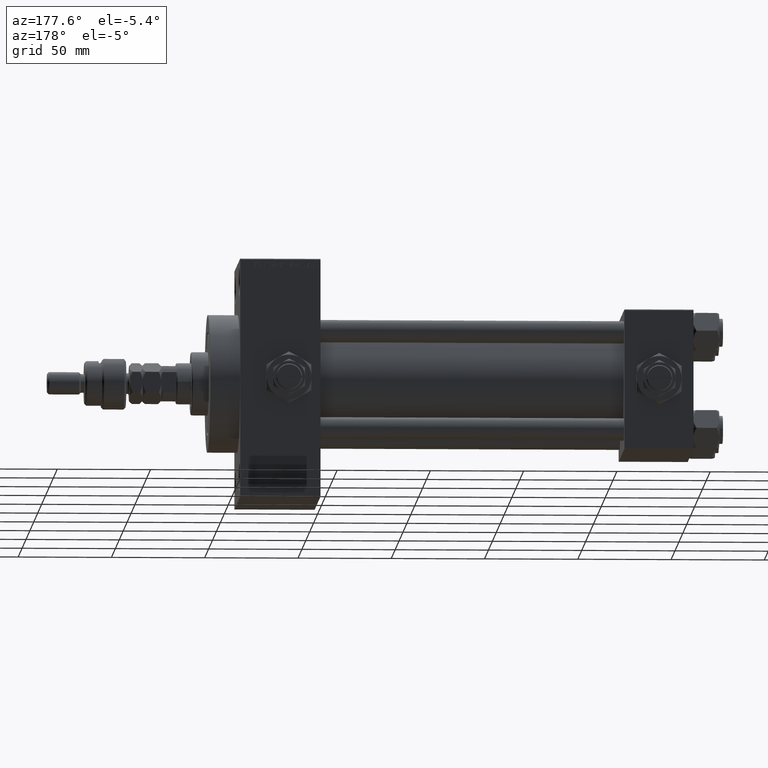
[diagram: clean part render]
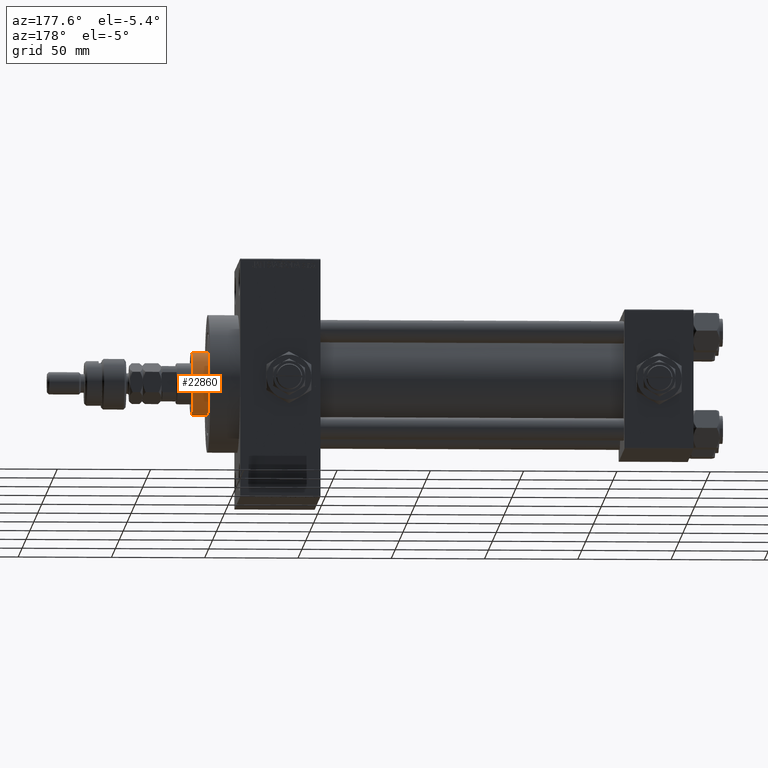
[diagram: same view with one face highlighted and labeled with its STEP entity id]
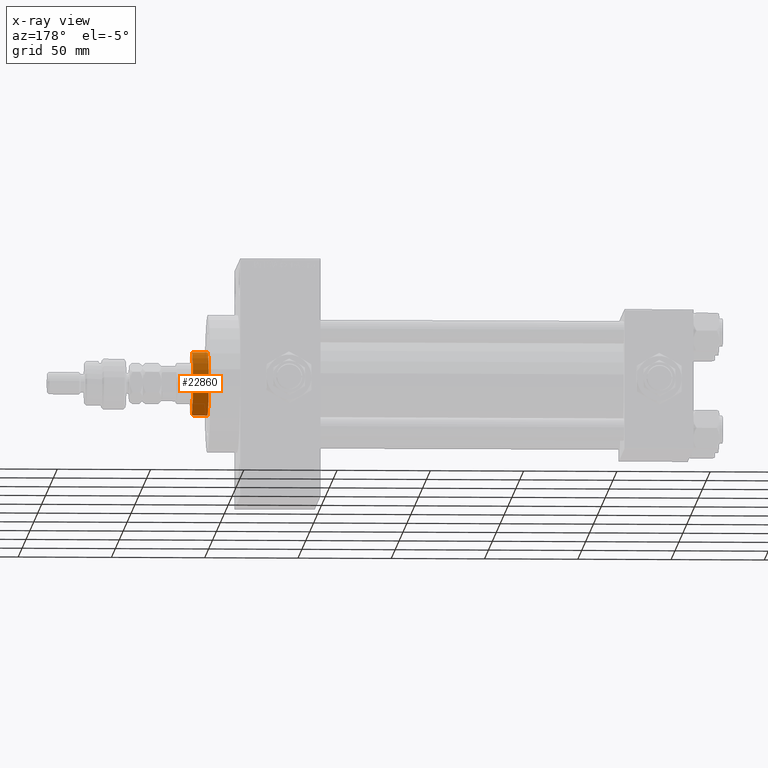
[diagram: x-ray of the same camera — body ghosted, the highlighted face saturated]
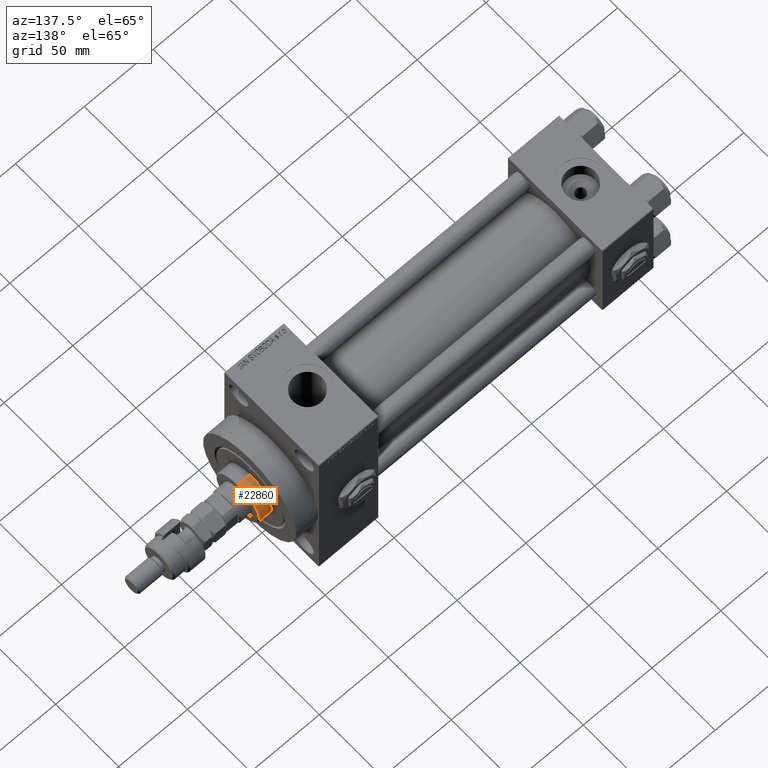
[diagram: same view with one face highlighted and labeled with its STEP entity id]
A machine part, auxiliary view. The second image highlights one B-rep face of the part: STEP entity #22860.
The next image is the same camera in x-ray: the body ghosted, the highlighted face saturated — about 0% of this face is hidden behind the body in this view.
A second angle (auxiliary view) of the same face is appended — the face is thin or edge-on in the first view.
In plain terms, the highlighted cylindrical surface (edge-blend (fillet) strip) has radius 17 mm, axis along (-1, 0, 0).
Its self-contained STEP definition (entity closure, byte-faithful):
#1816 = CIRCLE ( 'NONE', #31389, 17.00000000000000000 ) ;
#1977 = CARTESIAN_POINT ( 'NONE',  ( 17.00000000000000000, 2.081899558550500280E-15, 43.25999999999999801 ) ) ;
#2600 = DIRECTION ( 'NONE',  ( -0.000000000000000000, -0.000000000000000000, -1.000000000000000000 ) ) ;
#4563 = DIRECTION ( 'NONE',  ( -0.000000000000000000, -0.000000000000000000, -1.000000000000000000 ) ) ;
#5908 = DIRECTION ( 'NONE',  ( 1.000000000000000000, 0.000000000000000000, 0.000000000000000000 ) ) ;
#10088 = EDGE_CURVE ( 'NONE', #24170, #32527, #32679, .T. ) ;
#12064 = CARTESIAN_POINT ( 'NONE',  ( -17.00000000000000000, 0.000000000000000000, 51.76000000000000512 ) ) ;
#12789 = DIRECTION ( 'NONE',  ( -1.000000000000000000, 0.000000000000000000, 0.000000000000000000 ) ) ;
#14129 = DIRECTION ( 'NONE',  ( 0.000000000000000000, 0.000000000000000000, -1.000000000000000000 ) ) ;
#16421 = CIRCLE ( 'NONE', #45153, 17.00000000000000000 ) ;
#18465 = CARTESIAN_POINT ( 'NONE',  ( -17.00000000000000000, 0.000000000000000000, 52.25999999999999801 ) ) ;
#19125 = VECTOR ( 'NONE', #2600, 1000.000000000000000 ) ;
#21792 = ORIENTED_EDGE ( 'NONE', *, *, #30413, .T. ) ;
#22860 = ADVANCED_FACE ( 'NONE', ( #44782 ), #24671, .T. ) ;
#23116 = EDGE_CURVE ( 'NONE', #49129, #32527, #16421, .T. ) ;
#23576 = LINE ( 'NONE', #18465, #19125 ) ;
#23580 = DIRECTION ( 'NONE',  ( 0.000000000000000000, 0.000000000000000000, 1.000000000000000000 ) ) ;
#24170 = VERTEX_POINT ( 'NONE', #48718 ) ;
#24221 = DIRECTION ( 'NONE',  ( -0.000000000000000000, -0.000000000000000000, -1.000000000000000000 ) ) ;
#24671 = CYLINDRICAL_SURFACE ( 'NONE', #28226, 17.00000000000000000 ) ;
#28184 = ORIENTED_EDGE ( 'NONE', *, *, #23116, .T. ) ;
#28226 = AXIS2_PLACEMENT_3D ( 'NONE', #49022, #4563, #12789 ) ;
#28662 = CARTESIAN_POINT ( 'NONE',  ( -17.00000000000000000, 0.000000000000000000, 43.25999999999999801 ) ) ;
#29978 = CARTESIAN_POINT ( 'NONE',  ( 0.000000000000000000, 0.000000000000000000, 51.76000000000000512 ) ) ;
#30413 = EDGE_CURVE ( 'NONE', #33870, #49129, #23576, .T. ) ;
#31389 = AXIS2_PLACEMENT_3D ( 'NONE', #29978, #14129, #5908 ) ;
#31774 = DIRECTION ( 'NONE',  ( 1.000000000000000000, 0.000000000000000000, 0.000000000000000000 ) ) ;
#32527 = VERTEX_POINT ( 'NONE', #1977 ) ;
#32679 = LINE ( 'NONE', #41143, #39695 ) ;
#33870 = VERTEX_POINT ( 'NONE', #12064 ) ;
#34321 = ORIENTED_EDGE ( 'NONE', *, *, #10088, .F. ) ;
#37989 = EDGE_CURVE ( 'NONE', #24170, #33870, #1816, .T. ) ;
#39695 = VECTOR ( 'NONE', #24221, 1000.000000000000000 ) ;
#41143 = CARTESIAN_POINT ( 'NONE',  ( 17.00000000000000000, 2.081899558550500280E-15, 52.25999999999999801 ) ) ;
#42041 = EDGE_LOOP ( 'NONE', ( #34321, #45005, #21792, #28184 ) ) ;
#43699 = CARTESIAN_POINT ( 'NONE',  ( 0.000000000000000000, 0.000000000000000000, 43.25999999999999801 ) ) ;
#44782 = FACE_OUTER_BOUND ( 'NONE', #42041, .T. ) ;
#45005 = ORIENTED_EDGE ( 'NONE', *, *, #37989, .T. ) ;
#45153 = AXIS2_PLACEMENT_3D ( 'NONE', #43699, #23580, #31774 ) ;
#48718 = CARTESIAN_POINT ( 'NONE',  ( 17.00000000000000000, 2.081899558550500280E-15, 51.76000000000000512 ) ) ;
#49022 = CARTESIAN_POINT ( 'NONE',  ( 0.000000000000000000, 0.000000000000000000, 52.25999999999999801 ) ) ;
#49129 = VERTEX_POINT ( 'NONE', #28662 ) ;